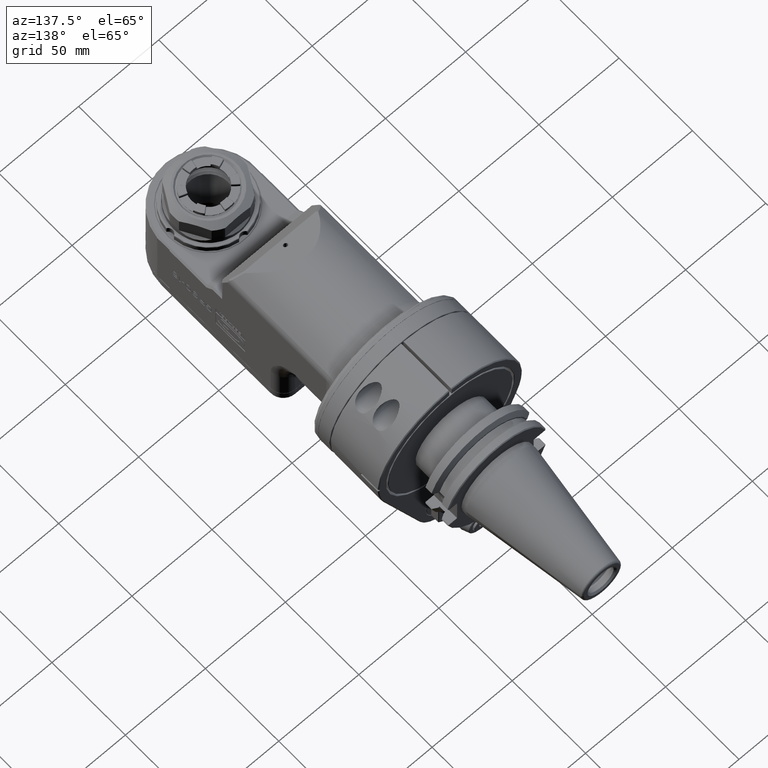
[diagram: clean part render]
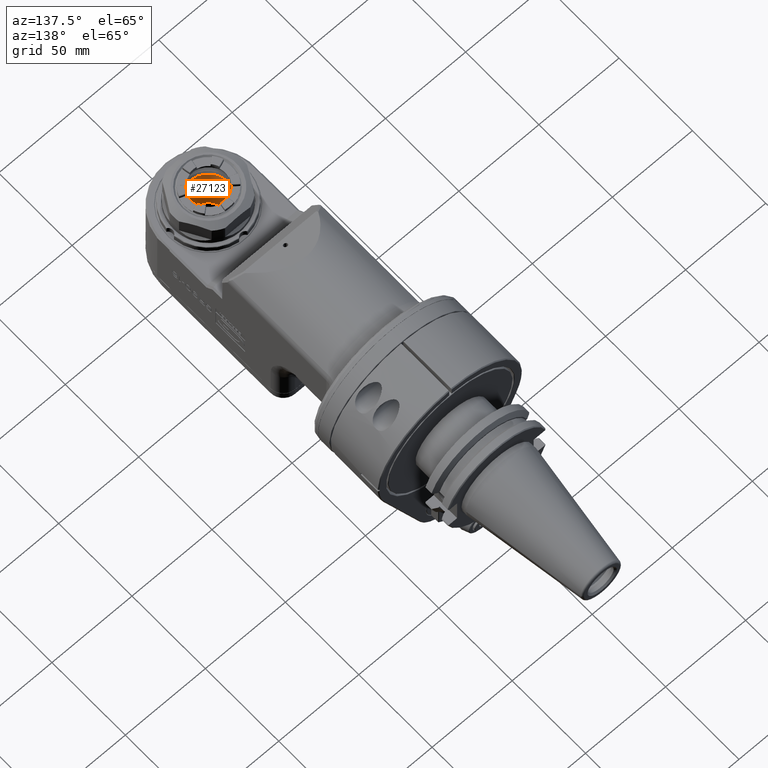
[diagram: same view with one face highlighted and labeled with its STEP entity id]
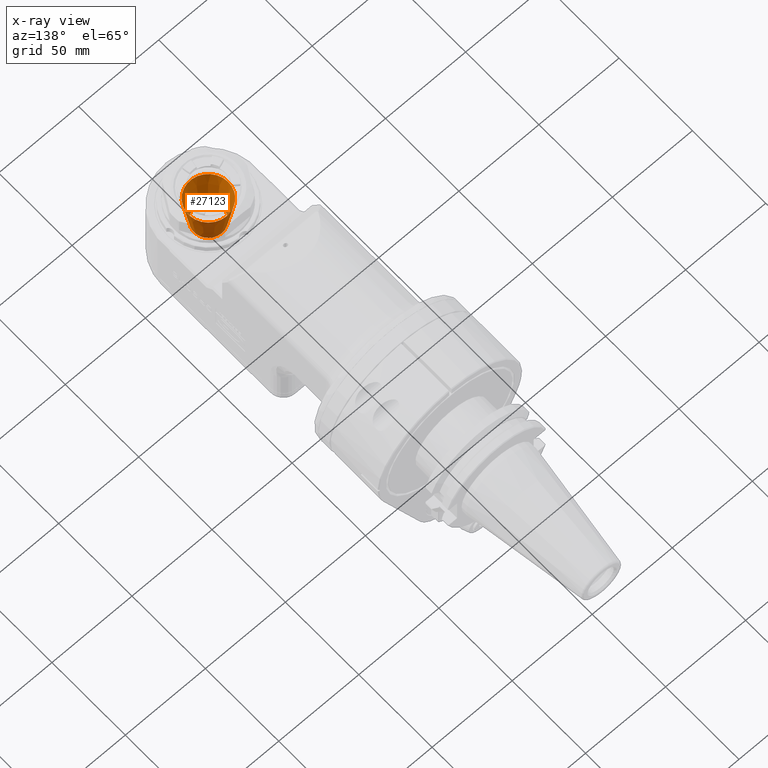
[diagram: x-ray of the same camera — body ghosted, the highlighted face saturated]
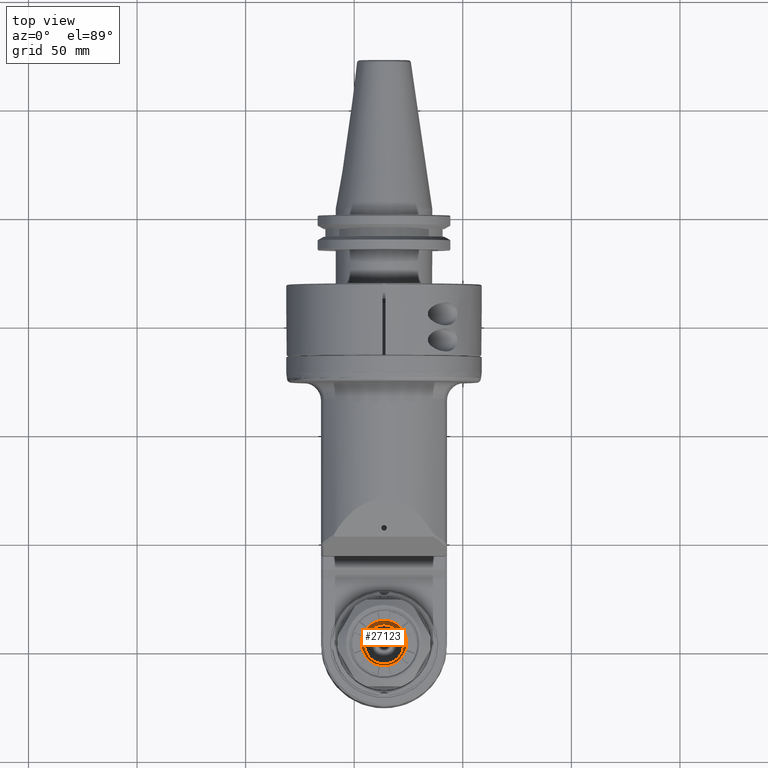
[diagram: same view with one face highlighted and labeled with its STEP entity id]
A machine part, auxiliary view. The second image highlights one B-rep face of the part: STEP entity #27123.
The next image is the same camera in x-ray: the body ghosted, the highlighted face saturated — about 7% of this face is hidden behind the body in this view.
A second angle (top view) of the same face is appended — the face is thin or edge-on in the first view.
In plain terms, the highlighted conical surface has half-angle 8 deg.
Its self-contained STEP definition (entity closure, byte-faithful):
#562=CONICAL_SURFACE('',#29214,10.68041344952,0.139626340159546);
#1592=CIRCLE('',#29212,12.36082689904);
#1593=CIRCLE('',#29213,12.36082689904);
#1594=CIRCLE('',#29215,9.);
#3359=FACE_OUTER_BOUND('',#5018,.T.);
#5018=EDGE_LOOP('',(#21347,#21348,#21349,#21350,#21351));
#7205=LINE('',#45453,#9546);
#9546=VECTOR('',#34565,10.68041344952);
#11868=VERTEX_POINT('',#45445);
#11869=VERTEX_POINT('',#45446);
#11870=VERTEX_POINT('',#45451);
#15240=EDGE_CURVE('',#11868,#11869,#1592,.T.);
#15241=EDGE_CURVE('',#11869,#11868,#1593,.T.);
#15243=EDGE_CURVE('',#11870,#11870,#1594,.T.);
#15244=EDGE_CURVE('',#11870,#11869,#7205,.T.);
#21347=ORIENTED_EDGE('',*,*,#15243,.F.);
#21348=ORIENTED_EDGE('',*,*,#15244,.T.);
#21349=ORIENTED_EDGE('',*,*,#15240,.F.);
#21350=ORIENTED_EDGE('',*,*,#15241,.F.);
#21351=ORIENTED_EDGE('',*,*,#15244,.F.);
#27123=ADVANCED_FACE('',(#3359),#562,.F.);
#29212=AXIS2_PLACEMENT_3D('',#45447,#34556,#34557);
#29213=AXIS2_PLACEMENT_3D('',#45448,#34558,#34559);
#29214=AXIS2_PLACEMENT_3D('',#45450,#34561,#34562);
#29215=AXIS2_PLACEMENT_3D('',#45452,#34563,#34564);
#34556=DIRECTION('center_axis',(1.,0.,0.));
#34557=DIRECTION('ref_axis',(0.,-1.,0.));
#34558=DIRECTION('center_axis',(1.,0.,0.));
#34559=DIRECTION('ref_axis',(0.,-1.,0.));
#34561=DIRECTION('center_axis',(-1.,0.,0.));
#34562=DIRECTION('ref_axis',(0.,-1.,0.));
#34563=DIRECTION('center_axis',(-1.,0.,0.));
#34564=DIRECTION('ref_axis',(0.,1.,2.698076240912E-11));
#34565=DIRECTION('',(-0.99026806874157,0.139173100960065,-1.70437892618156E-17));
#45445=CARTESIAN_POINT('',(6.990268068741,-156.9999999994,-12.36082689904));
#45446=CARTESIAN_POINT('',(6.99026806874094,-144.63917310096,-1.51376470967234E-15));
#45447=CARTESIAN_POINT('Origin',(6.990268068741,-157.,0.));
#45448=CARTESIAN_POINT('Origin',(6.990268068741,-157.,0.));
#45450=CARTESIAN_POINT('Origin',(18.94703104854,-157.,0.));
#45451=CARTESIAN_POINT('',(30.90379402834,-148.,4.15031112541E-10));
#45452=CARTESIAN_POINT('Origin',(30.90379402834,-157.,0.));
#45453=CARTESIAN_POINT('',(18.94703104854,-146.31958655048,-1.3079734144525E-15));